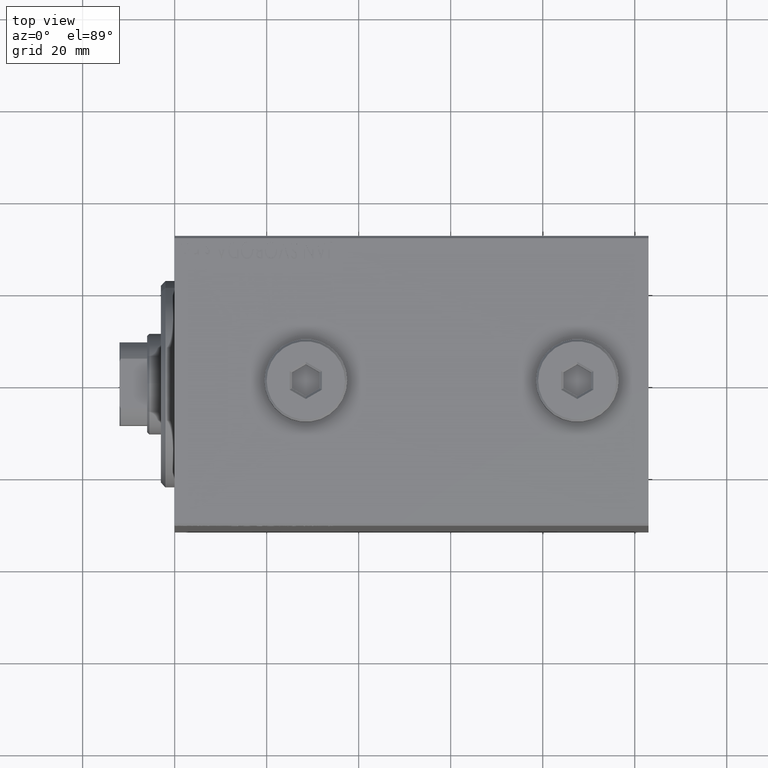
[diagram: clean part render]
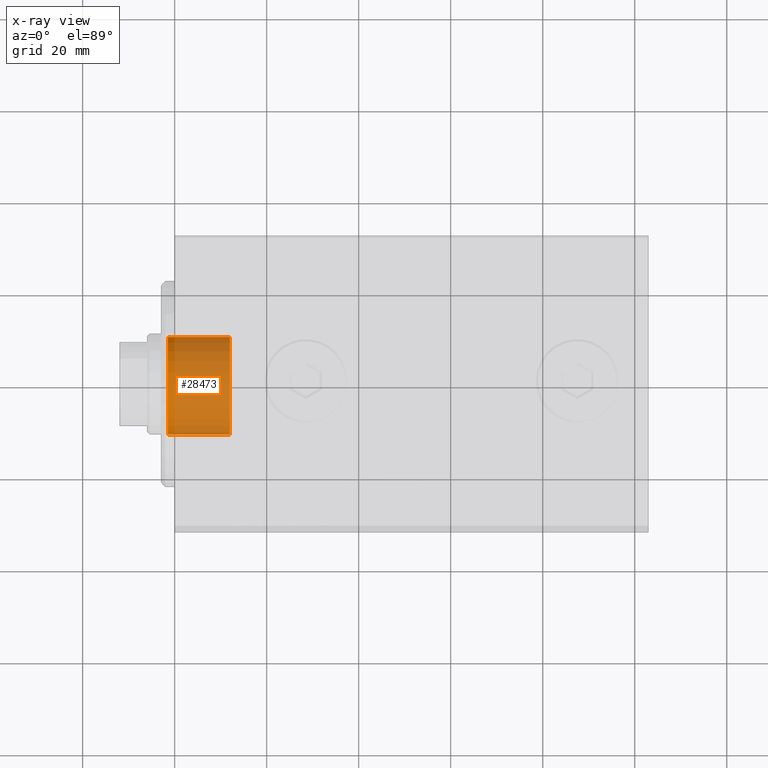
[diagram: x-ray — body ghosted, one internal face saturated and labeled with its STEP entity id]
A machine part, top view, then the same camera in x-ray: the body is ghosted and one INTERNAL B-rep face — a face not visible from any outside direction — is saturated and labeled: STEP entity #28473.
In plain terms, the highlighted cylindrical surface (partial cylindrical patch) has radius 11 mm, axis along (-1, 0, 0).
Its self-contained STEP definition (entity closure, byte-faithful):
#160 = DIRECTION ( 'NONE',  ( 1.000000000000000000, -0.000000000000000000, -0.000000000000000000 ) ) ;
#1007 = DIRECTION ( 'NONE',  ( 1.000000000000000000, -0.000000000000000000, -0.000000000000000000 ) ) ;
#5119 = AXIS2_PLACEMENT_3D ( 'NONE', #32324, #1007, #21568 ) ;
#7719 = EDGE_LOOP ( 'NONE', ( #25266, #29531, #18941, #37524 ) ) ;
#8585 = AXIS2_PLACEMENT_3D ( 'NONE', #44765, #16882, #30829 ) ;
#10651 = CARTESIAN_POINT ( 'NONE',  ( -12.00000000000000000, 1.347111479062088405E-15, 11.00000000000000000 ) ) ;
#11967 = VECTOR ( 'NONE', #160, 1000.000000000000000 ) ;
#13260 = DIRECTION ( 'NONE',  ( 0.000000000000000000, 0.000000000000000000, -1.000000000000000000 ) ) ;
#14833 = LINE ( 'NONE', #39280, #17944 ) ;
#15916 = CARTESIAN_POINT ( 'NONE',  ( -12.00000000000000000, 1.347111479062088405E-15, 11.00000000000000000 ) ) ;
#16680 = LINE ( 'NONE', #10651, #11967 ) ;
#16882 = DIRECTION ( 'NONE',  ( 1.000000000000000000, 0.000000000000000000, 0.000000000000000000 ) ) ;
#17321 = CIRCLE ( 'NONE', #8585, 11.00000000000000000 ) ;
#17944 = VECTOR ( 'NONE', #21919, 1000.000000000000000 ) ;
#18387 = CYLINDRICAL_SURFACE ( 'NONE', #5119, 11.00000000000000000 ) ;
#18941 = ORIENTED_EDGE ( 'NONE', *, *, #40346, .T. ) ;
#19212 = VERTEX_POINT ( 'NONE', #38513 ) ;
#19658 = VERTEX_POINT ( 'NONE', #38154 ) ;
#20124 = VERTEX_POINT ( 'NONE', #22960 ) ;
#21568 = DIRECTION ( 'NONE',  ( 0.000000000000000000, 0.000000000000000000, -1.000000000000000000 ) ) ;
#21919 = DIRECTION ( 'NONE',  ( 1.000000000000000000, -0.000000000000000000, -0.000000000000000000 ) ) ;
#22408 = AXIS2_PLACEMENT_3D ( 'NONE', #37484, #26978, #13260 ) ;
#22960 = CARTESIAN_POINT ( 'NONE',  ( 1.499999999999999556, 1.347111479062088405E-15, 11.00000000000000000 ) ) ;
#23293 = VERTEX_POINT ( 'NONE', #15916 ) ;
#25266 = ORIENTED_EDGE ( 'NONE', *, *, #41395, .F. ) ;
#26978 = DIRECTION ( 'NONE',  ( 1.000000000000000000, 0.000000000000000000, 0.000000000000000000 ) ) ;
#28473 = ADVANCED_FACE ( 'NONE', ( #28665 ), #18387, .F. ) ;
#28665 = FACE_OUTER_BOUND ( 'NONE', #7719, .T. ) ;
#29531 = ORIENTED_EDGE ( 'NONE', *, *, #36412, .T. ) ;
#30829 = DIRECTION ( 'NONE',  ( 0.000000000000000000, 0.000000000000000000, -1.000000000000000000 ) ) ;
#32324 = CARTESIAN_POINT ( 'NONE',  ( -12.00000000000000000, 0.000000000000000000, 0.000000000000000000 ) ) ;
#36412 = EDGE_CURVE ( 'NONE', #23293, #20124, #16680, .T. ) ;
#37459 = EDGE_CURVE ( 'NONE', #19212, #19658, #14833, .T. ) ;
#37484 = CARTESIAN_POINT ( 'NONE',  ( 1.499999999999999556, 0.000000000000000000, 0.000000000000000000 ) ) ;
#37524 = ORIENTED_EDGE ( 'NONE', *, *, #37459, .F. ) ;
#37708 = CIRCLE ( 'NONE', #22408, 11.00000000000000000 ) ;
#38154 = CARTESIAN_POINT ( 'NONE',  ( 1.499999999999999556, 0.000000000000000000, -11.00000000000000000 ) ) ;
#38513 = CARTESIAN_POINT ( 'NONE',  ( -12.00000000000000000, 0.000000000000000000, -11.00000000000000000 ) ) ;
#39280 = CARTESIAN_POINT ( 'NONE',  ( -12.00000000000000000, 0.000000000000000000, -11.00000000000000000 ) ) ;
#40346 = EDGE_CURVE ( 'NONE', #20124, #19658, #37708, .T. ) ;
#41395 = EDGE_CURVE ( 'NONE', #23293, #19212, #17321, .T. ) ;
#44765 = CARTESIAN_POINT ( 'NONE',  ( -12.00000000000000000, 0.000000000000000000, 0.000000000000000000 ) ) ;